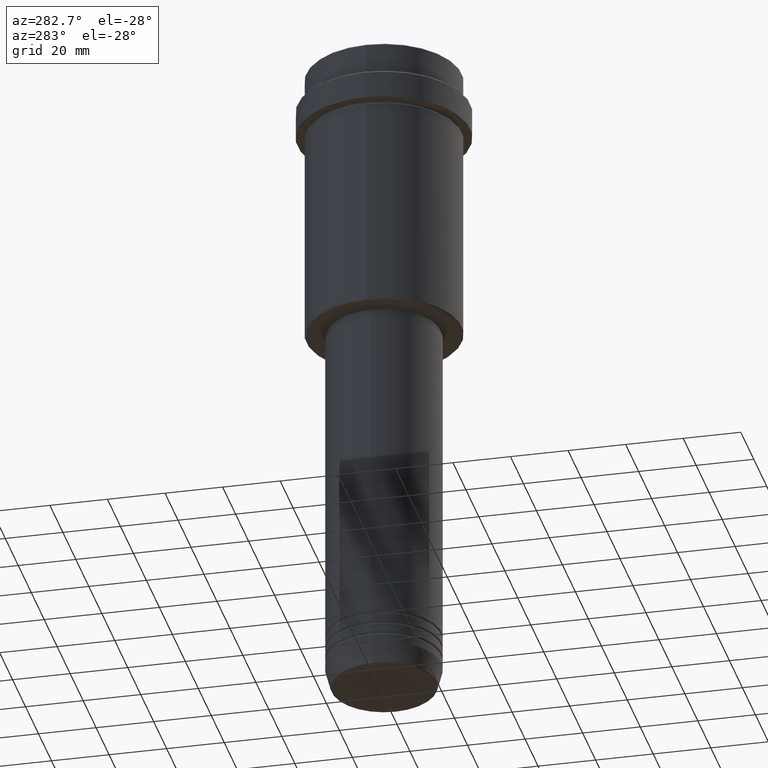
[diagram: clean part render]
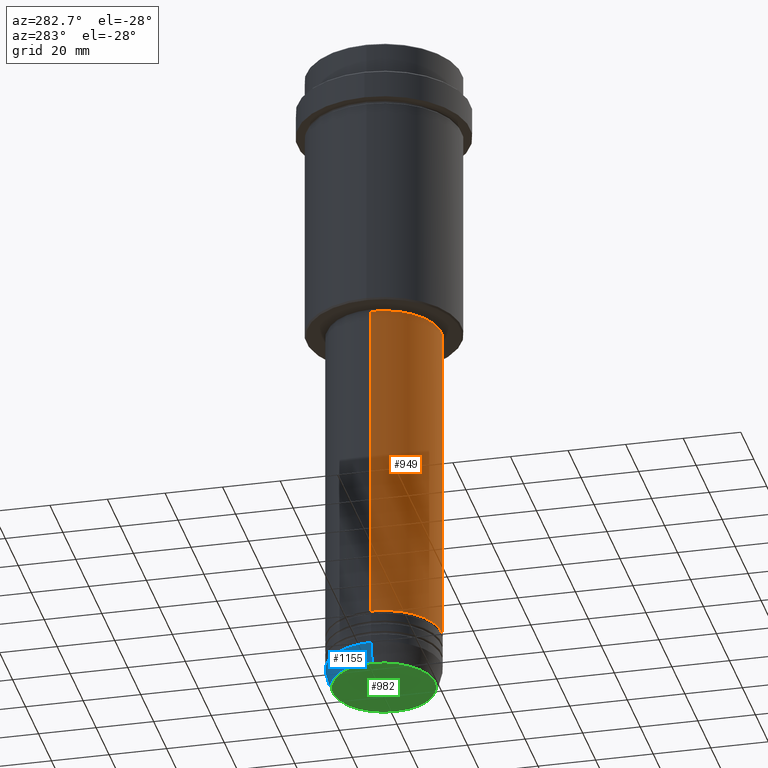
[diagram: same view with three faces highlighted in distinct colors, each labeled with its STEP entity id]
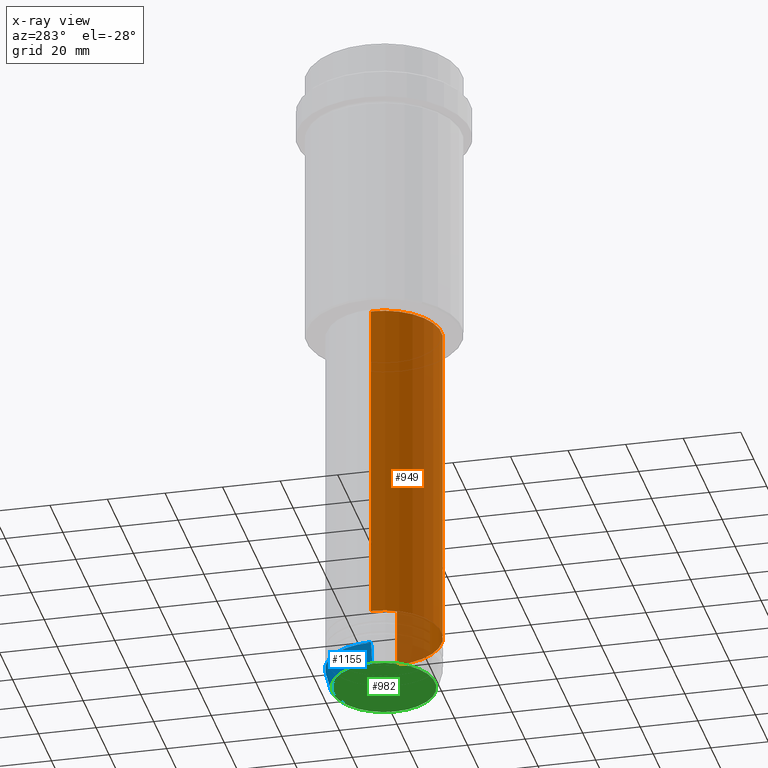
[diagram: x-ray of the same camera — body ghosted, the three highlighted faces saturated]
A machine part, auxiliary view with three faces highlighted in distinct colors.
The next image is the same camera in x-ray (body ghosted, the three faces saturated) — at least one of them is partly hidden behind the body in this view.
Their STEP definitions:

[orange] entity #949 — the highlighted cylindrical surface (partial cylindrical patch) has radius 20 mm, axis along (-0, -0, 1).
#38 = CARTESIAN_POINT ( 'NONE',  ( 19.99999999999999645, 0.000000000000000000, -98.99999999999997158 ) ) ;
#70 = CIRCLE ( 'NONE', #1084, 20.00000000000000000 ) ;
#99 = CARTESIAN_POINT ( 'NONE',  ( 0.000000000000000000, 0.000000000000000000, 0.000000000000000000 ) ) ;
#129 = CARTESIAN_POINT ( 'NONE',  ( 20.00000000000000000, 0.000000000000000000, -213.9999999999998579 ) ) ;
#235 = ORIENTED_EDGE ( 'NONE', *, *, #733, .F. ) ;
#284 = ORIENTED_EDGE ( 'NONE', *, *, #377, .T. ) ;
#306 = VERTEX_POINT ( 'NONE', #129 ) ;
#377 = EDGE_CURVE ( 'NONE', #306, #1285, #1378, .T. ) ;
#427 = CYLINDRICAL_SURFACE ( 'NONE', #570, 19.99999999999999645 ) ;
#435 = FACE_OUTER_BOUND ( 'NONE', #1190, .T. ) ;
#503 = VECTOR ( 'NONE', #519, 1000.000000000000000 ) ;
#519 = DIRECTION ( 'NONE',  ( -0.000000000000000000, -0.000000000000000000, 1.000000000000000000 ) ) ;
#528 = DIRECTION ( 'NONE',  ( -0.000000000000000000, -0.000000000000000000, 1.000000000000000000 ) ) ;
#536 = VERTEX_POINT ( 'NONE', #1075 ) ;
#570 = AXIS2_PLACEMENT_3D ( 'NONE', #99, #528, #1074 ) ;
#616 = CARTESIAN_POINT ( 'NONE',  ( -19.99999999999999645, 2.449293598294706119E-15, -98.99999999999997158 ) ) ;
#684 = DIRECTION ( 'NONE',  ( 1.000000000000000000, 0.000000000000000000, 0.000000000000000000 ) ) ;
#722 = CARTESIAN_POINT ( 'NONE',  ( 19.99999999999999645, 0.000000000000000000, 0.000000000000000000 ) ) ;
#733 = EDGE_CURVE ( 'NONE', #839, #1285, #992, .T. ) ;
#745 = LINE ( 'NONE', #1087, #503 ) ;
#829 = DIRECTION ( 'NONE',  ( -0.000000000000000000, -0.000000000000000000, 1.000000000000000000 ) ) ;
#839 = VERTEX_POINT ( 'NONE', #616 ) ;
#868 = ORIENTED_EDGE ( 'NONE', *, *, #965, .F. ) ;
#900 = AXIS2_PLACEMENT_3D ( 'NONE', #1108, #911, #684 ) ;
#911 = DIRECTION ( 'NONE',  ( -0.000000000000000000, -0.000000000000000000, 1.000000000000000000 ) ) ;
#948 = DIRECTION ( 'NONE',  ( -0.000000000000000000, -0.000000000000000000, 1.000000000000000000 ) ) ;
#949 = ADVANCED_FACE ( 'NONE', ( #435 ), #427, .T. ) ;
#965 = EDGE_CURVE ( 'NONE', #536, #839, #745, .T. ) ;
#992 = CIRCLE ( 'NONE', #900, 19.99999999999999645 ) ;
#1042 = ORIENTED_EDGE ( 'NONE', *, *, #1311, .T. ) ;
#1060 = VECTOR ( 'NONE', #948, 1000.000000000000000 ) ;
#1074 = DIRECTION ( 'NONE',  ( 1.000000000000000000, 0.000000000000000000, 0.000000000000000000 ) ) ;
#1075 = CARTESIAN_POINT ( 'NONE',  ( -20.00000000000000000, 2.449293598294706513E-15, -213.9999999999998579 ) ) ;
#1084 = AXIS2_PLACEMENT_3D ( 'NONE', #1349, #829, #1156 ) ;
#1087 = CARTESIAN_POINT ( 'NONE',  ( -19.99999999999999645, 2.449293598294706119E-15, 0.000000000000000000 ) ) ;
#1108 = CARTESIAN_POINT ( 'NONE',  ( 0.000000000000000000, 0.000000000000000000, -98.99999999999997158 ) ) ;
#1156 = DIRECTION ( 'NONE',  ( 1.000000000000000000, 0.000000000000000000, 0.000000000000000000 ) ) ;
#1190 = EDGE_LOOP ( 'NONE', ( #868, #1042, #284, #235 ) ) ;
#1285 = VERTEX_POINT ( 'NONE', #38 ) ;
#1311 = EDGE_CURVE ( 'NONE', #536, #306, #70, .T. ) ;
#1349 = CARTESIAN_POINT ( 'NONE',  ( 0.000000000000000000, 0.000000000000000000, -213.9999999999998579 ) ) ;
#1378 = LINE ( 'NONE', #722, #1060 ) ;

[blue] entity #1155 — the highlighted conical surface has half-angle 15 deg.
#15 = CARTESIAN_POINT ( 'NONE',  ( 20.00000000000000000, 0.000000000000000000, -225.9999999999999716 ) ) ;
#182 = AXIS2_PLACEMENT_3D ( 'NONE', #1120, #925, #348 ) ;
#187 = CIRCLE ( 'NONE', #1209, 20.00000000000000000 ) ;
#217 = VERTEX_POINT ( 'NONE', #1343 ) ;
#236 = LINE ( 'NONE', #15, #1347 ) ;
#256 = CARTESIAN_POINT ( 'NONE',  ( -18.22365507213719837, 2.340523841790265507E-15, -232.6294095225512422 ) ) ;
#303 = EDGE_CURVE ( 'NONE', #1095, #766, #1320, .T. ) ;
#335 = CARTESIAN_POINT ( 'NONE',  ( 0.000000000000000000, 0.000000000000000000, -225.9999999999999716 ) ) ;
#348 = DIRECTION ( 'NONE',  ( 1.000000000000000000, 0.000000000000000000, 0.000000000000000000 ) ) ;
#426 = EDGE_LOOP ( 'NONE', ( #1404, #1135, #891, #673 ) ) ;
#453 = DIRECTION ( 'NONE',  ( 0.2588190451025209060, 0.000000000000000000, 0.9659258262890682012 ) ) ;
#493 = VERTEX_POINT ( 'NONE', #1308 ) ;
#495 = CARTESIAN_POINT ( 'NONE',  ( -20.00000000000000000, 2.449293598294706513E-15, -225.9999999999999716 ) ) ;
#549 = VECTOR ( 'NONE', #1367, 1000.000000000000000 ) ;
#673 = ORIENTED_EDGE ( 'NONE', *, *, #1138, .F. ) ;
#766 = VERTEX_POINT ( 'NONE', #256 ) ;
#776 = DIRECTION ( 'NONE',  ( -0.000000000000000000, -0.000000000000000000, 1.000000000000000000 ) ) ;
#809 = DIRECTION ( 'NONE',  ( 1.000000000000000000, 0.000000000000000000, 0.000000000000000000 ) ) ;
#891 = ORIENTED_EDGE ( 'NONE', *, *, #1133, .F. ) ;
#915 = CARTESIAN_POINT ( 'NONE',  ( 18.22365507213719837, 0.000000000000000000, -232.6294095225512422 ) ) ;
#925 = DIRECTION ( 'NONE',  ( -0.000000000000000000, -0.000000000000000000, 1.000000000000000000 ) ) ;
#993 = AXIS2_PLACEMENT_3D ( 'NONE', #335, #776, #1201 ) ;
#1044 = LINE ( 'NONE', #495, #549 ) ;
#1064 = CONICAL_SURFACE ( 'NONE', #993, 20.00000000000000000, 0.2617993877991495744 ) ;
#1095 = VERTEX_POINT ( 'NONE', #915 ) ;
#1120 = CARTESIAN_POINT ( 'NONE',  ( 0.000000000000000000, 0.000000000000000000, -232.6294095225512422 ) ) ;
#1133 = EDGE_CURVE ( 'NONE', #493, #217, #187, .T. ) ;
#1135 = ORIENTED_EDGE ( 'NONE', *, *, #1330, .T. ) ;
#1138 = EDGE_CURVE ( 'NONE', #1095, #493, #236, .T. ) ;
#1155 = ADVANCED_FACE ( 'NONE', ( #1312 ), #1064, .T. ) ;
#1201 = DIRECTION ( 'NONE',  ( 1.000000000000000000, 0.000000000000000000, 0.000000000000000000 ) ) ;
#1209 = AXIS2_PLACEMENT_3D ( 'NONE', #1218, #1212, #809 ) ;
#1212 = DIRECTION ( 'NONE',  ( -0.000000000000000000, -0.000000000000000000, 1.000000000000000000 ) ) ;
#1218 = CARTESIAN_POINT ( 'NONE',  ( 0.000000000000000000, 0.000000000000000000, -225.9999999999999716 ) ) ;
#1308 = CARTESIAN_POINT ( 'NONE',  ( 20.00000000000000000, 0.000000000000000000, -225.9999999999999716 ) ) ;
#1312 = FACE_OUTER_BOUND ( 'NONE', #426, .T. ) ;
#1320 = CIRCLE ( 'NONE', #182, 18.22365507213719837 ) ;
#1330 = EDGE_CURVE ( 'NONE', #766, #217, #1044, .T. ) ;
#1343 = CARTESIAN_POINT ( 'NONE',  ( -20.00000000000000000, 2.449293598294706513E-15, -225.9999999999999716 ) ) ;
#1347 = VECTOR ( 'NONE', #453, 1000.000000000000000 ) ;
#1367 = DIRECTION ( 'NONE',  ( -0.2588190451025209060, 3.169619151431766790E-17, 0.9659258262890682012 ) ) ;
#1404 = ORIENTED_EDGE ( 'NONE', *, *, #303, .T. ) ;

[green] entity #982 — the highlighted planar face has unit normal (0, -0, 1).
#4 = CARTESIAN_POINT ( 'NONE',  ( 0.000000000000000000, 0.000000000000000000, -232.9999999999999716 ) ) ;
#12 = ORIENTED_EDGE ( 'NONE', *, *, #777, .T. ) ;
#143 = CARTESIAN_POINT ( 'NONE',  ( -17.74069215899265828, 2.202181136001357959E-15, -232.9999999999999716 ) ) ;
#188 = CARTESIAN_POINT ( 'NONE',  ( 0.000000000000000000, 0.000000000000000000, -232.9999999999999716 ) ) ;
#272 = AXIS2_PLACEMENT_3D ( 'NONE', #4, #325, #1088 ) ;
#281 = DIRECTION ( 'NONE',  ( 1.000000000000000000, 0.000000000000000000, 0.000000000000000000 ) ) ;
#298 = ORIENTED_EDGE ( 'NONE', *, *, #488, .T. ) ;
#309 = CARTESIAN_POINT ( 'NONE',  ( 17.74069215899265828, 0.000000000000000000, -232.9999999999999716 ) ) ;
#325 = DIRECTION ( 'NONE',  ( 0.000000000000000000, 0.000000000000000000, -1.000000000000000000 ) ) ;
#488 = EDGE_CURVE ( 'NONE', #994, #1375, #590, .T. ) ;
#502 = EDGE_LOOP ( 'NONE', ( #298, #12 ) ) ;
#514 = CARTESIAN_POINT ( 'NONE',  ( 0.000000000000000000, 0.000000000000000000, -232.9999999999999716 ) ) ;
#590 = CIRCLE ( 'NONE', #272, 17.74069215899265828 ) ;
#767 = FACE_OUTER_BOUND ( 'NONE', #502, .T. ) ;
#777 = EDGE_CURVE ( 'NONE', #1375, #994, #1393, .T. ) ;
#943 = DIRECTION ( 'NONE',  ( 0.000000000000000000, 0.000000000000000000, -1.000000000000000000 ) ) ;
#982 = ADVANCED_FACE ( 'NONE', ( #767 ), #1281, .F. ) ;
#994 = VERTEX_POINT ( 'NONE', #309 ) ;
#1088 = DIRECTION ( 'NONE',  ( 1.000000000000000000, 0.000000000000000000, 0.000000000000000000 ) ) ;
#1176 = DIRECTION ( 'NONE',  ( 0.000000000000000000, -0.000000000000000000, 1.000000000000000000 ) ) ;
#1183 = DIRECTION ( 'NONE',  ( 1.000000000000000000, 0.000000000000000000, 0.000000000000000000 ) ) ;
#1254 = AXIS2_PLACEMENT_3D ( 'NONE', #188, #943, #281 ) ;
#1281 = PLANE ( 'NONE',  #1395 ) ;
#1375 = VERTEX_POINT ( 'NONE', #143 ) ;
#1393 = CIRCLE ( 'NONE', #1254, 17.74069215899265828 ) ;
#1395 = AXIS2_PLACEMENT_3D ( 'NONE', #514, #1176, #1183 ) ;